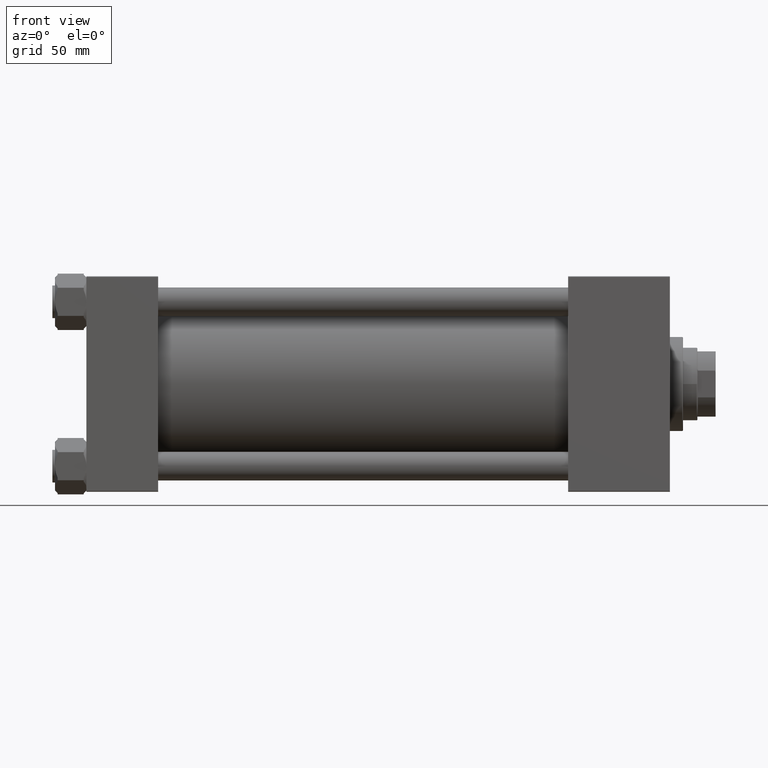
[diagram: clean part render]
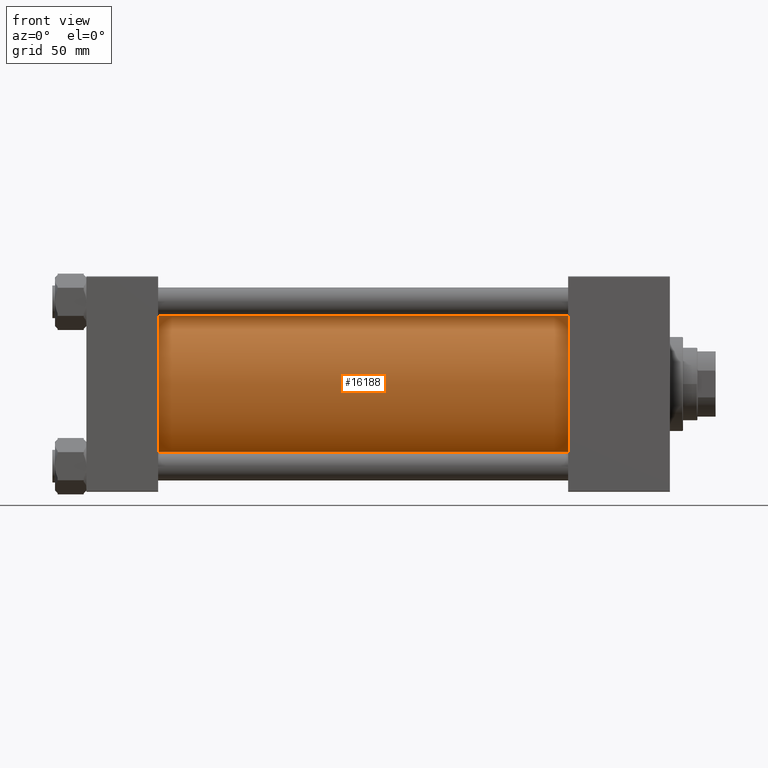
[diagram: same view with one face highlighted and labeled with its STEP entity id]
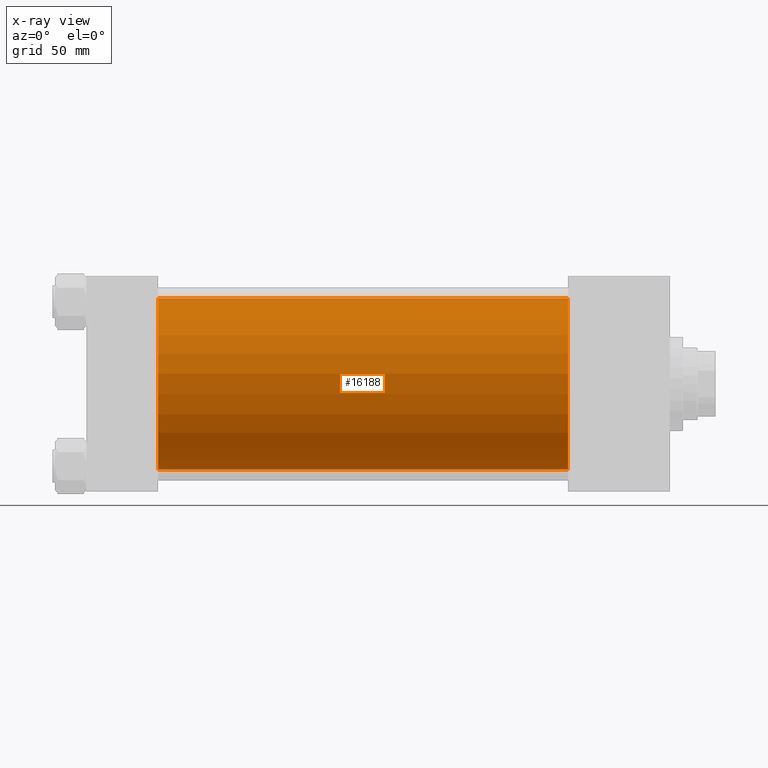
[diagram: x-ray of the same camera — body ghosted, the highlighted face saturated]
A machine part, front view. The second image highlights one B-rep face of the part: STEP entity #16188.
The next image is the same camera in x-ray: the body ghosted, the highlighted face saturated — about 2% of this face is hidden behind the body in this view.
In plain terms, the highlighted cylindrical surface (partial cylindrical patch) has radius 65.5 mm, axis along (-1, -0, -0).
Its self-contained STEP definition (entity closure, byte-faithful):
#1967 = LINE ( 'NONE', #9917, #41282 ) ;
#4597 = DIRECTION ( 'NONE',  ( 1.000000000000000000, 0.000000000000000000, 0.000000000000000000 ) ) ;
#5947 = VERTEX_POINT ( 'NONE', #13091 ) ;
#7698 = CARTESIAN_POINT ( 'NONE',  ( 54.99999999999999289, 5.419351320449954973E-15, -65.50000000000001421 ) ) ;
#8315 = DIRECTION ( 'NONE',  ( -1.000000000000000000, -0.000000000000000000, -0.000000000000000000 ) ) ;
#9917 = CARTESIAN_POINT ( 'NONE',  ( 369.0000000000000000, 5.419351320449954973E-15, -65.50000000000001421 ) ) ;
#10023 = DIRECTION ( 'NONE',  ( -1.000000000000000000, -0.000000000000000000, -0.000000000000000000 ) ) ;
#11309 = EDGE_CURVE ( 'NONE', #33413, #12646, #19883, .T. ) ;
#11393 = VECTOR ( 'NONE', #10023, 1000.000000000000000 ) ;
#11655 = DIRECTION ( 'NONE',  ( 0.000000000000000000, 0.000000000000000000, 1.000000000000000000 ) ) ;
#11985 = EDGE_CURVE ( 'NONE', #49316, #12646, #1967, .T. ) ;
#12170 = CARTESIAN_POINT ( 'NONE',  ( 369.0000000000000000, -2.602085213965210642E-15, 0.000000000000000000 ) ) ;
#12646 = VERTEX_POINT ( 'NONE', #7698 ) ;
#13091 = CARTESIAN_POINT ( 'NONE',  ( 369.0000000000000000, -2.602085213965210642E-15, 65.50000000000001421 ) ) ;
#14298 = AXIS2_PLACEMENT_3D ( 'NONE', #12170, #8315, #11655 ) ;
#15524 = CARTESIAN_POINT ( 'NONE',  ( 54.99999999999999289, -2.602085213965210642E-15, 0.000000000000000000 ) ) ;
#16188 = ADVANCED_FACE ( 'NONE', ( #35090 ), #31750, .T. ) ;
#17435 = AXIS2_PLACEMENT_3D ( 'NONE', #15524, #46939, #39215 ) ;
#17997 = CARTESIAN_POINT ( 'NONE',  ( 369.0000000000000000, -2.602085213965210642E-15, 65.50000000000001421 ) ) ;
#18471 = CARTESIAN_POINT ( 'NONE',  ( 369.0000000000000000, 5.419351320449954973E-15, -65.50000000000001421 ) ) ;
#19883 = CIRCLE ( 'NONE', #17435, 65.50000000000001421 ) ;
#27747 = CARTESIAN_POINT ( 'NONE',  ( 369.0000000000000000, -2.602085213965210642E-15, 0.000000000000000000 ) ) ;
#28523 = DIRECTION ( 'NONE',  ( 0.000000000000000000, 0.000000000000000000, -1.000000000000000000 ) ) ;
#30204 = CARTESIAN_POINT ( 'NONE',  ( 54.99999999999999289, -2.602085213965210642E-15, 65.50000000000001421 ) ) ;
#30312 = CIRCLE ( 'NONE', #43451, 65.50000000000001421 ) ;
#31750 = CYLINDRICAL_SURFACE ( 'NONE', #14298, 65.50000000000001421 ) ;
#33413 = VERTEX_POINT ( 'NONE', #30204 ) ;
#34876 = EDGE_CURVE ( 'NONE', #5947, #33413, #45286, .T. ) ;
#34924 = EDGE_LOOP ( 'NONE', ( #43280, #37128, #45891, #47470 ) ) ;
#35090 = FACE_OUTER_BOUND ( 'NONE', #34924, .T. ) ;
#35108 = EDGE_CURVE ( 'NONE', #5947, #49316, #30312, .T. ) ;
#37128 = ORIENTED_EDGE ( 'NONE', *, *, #35108, .F. ) ;
#39215 = DIRECTION ( 'NONE',  ( 0.000000000000000000, 0.000000000000000000, 1.000000000000000000 ) ) ;
#41282 = VECTOR ( 'NONE', #45686, 1000.000000000000000 ) ;
#43280 = ORIENTED_EDGE ( 'NONE', *, *, #11985, .F. ) ;
#43451 = AXIS2_PLACEMENT_3D ( 'NONE', #27747, #4597, #28523 ) ;
#45286 = LINE ( 'NONE', #17997, #11393 ) ;
#45686 = DIRECTION ( 'NONE',  ( -1.000000000000000000, -0.000000000000000000, -0.000000000000000000 ) ) ;
#45891 = ORIENTED_EDGE ( 'NONE', *, *, #34876, .T. ) ;
#46939 = DIRECTION ( 'NONE',  ( 1.000000000000000000, -0.000000000000000000, -0.000000000000000000 ) ) ;
#47470 = ORIENTED_EDGE ( 'NONE', *, *, #11309, .T. ) ;
#49316 = VERTEX_POINT ( 'NONE', #18471 ) ;